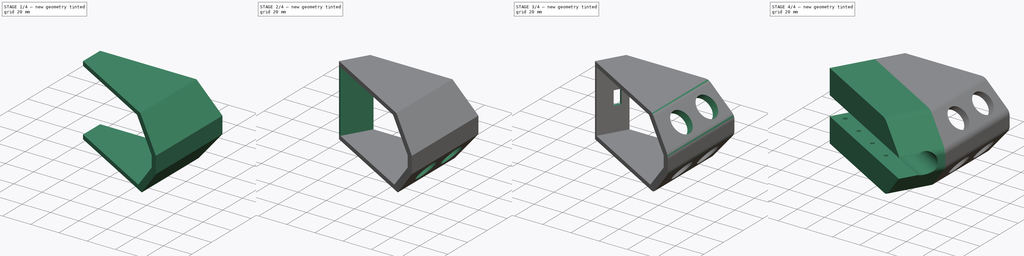
[diagram: build sequence overview — one tinted view per stage of 4, left to right]
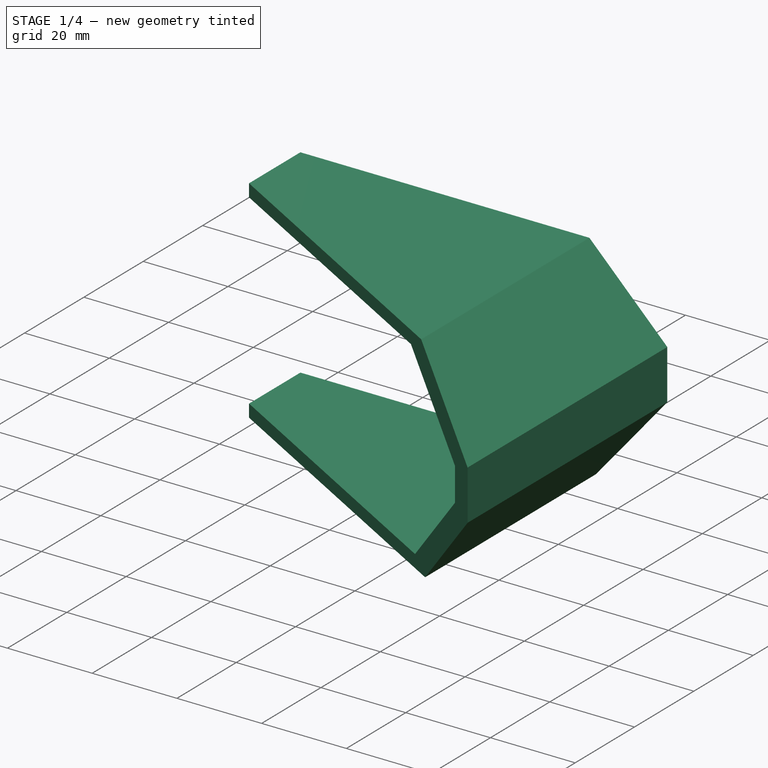
[diagram: stage 1 of 4 — iso view after this stage's code; geometry added in this stage tinted green]
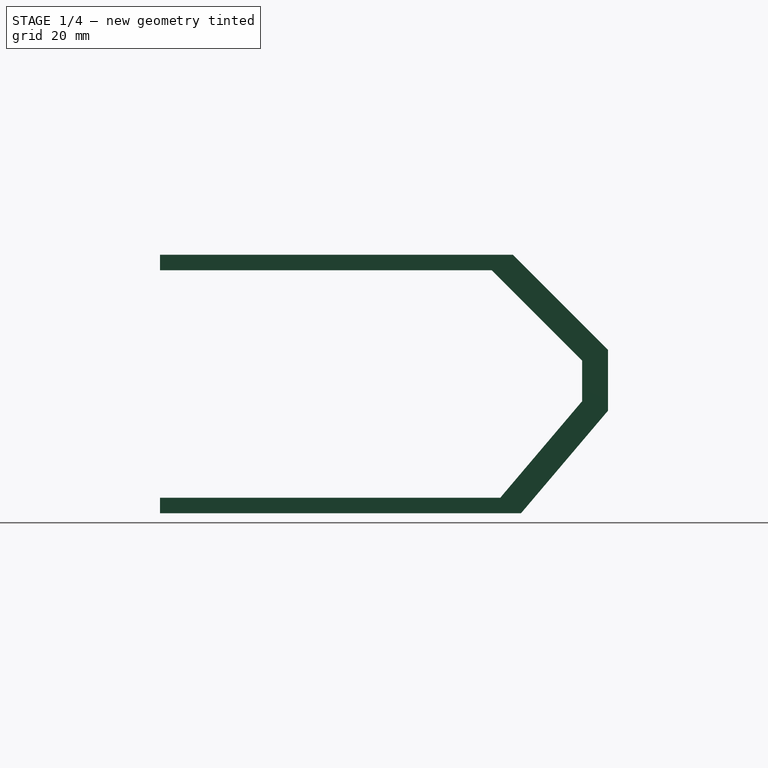
[diagram: stage 1 of 4 — front view after this stage's code; geometry added in this stage tinted green]
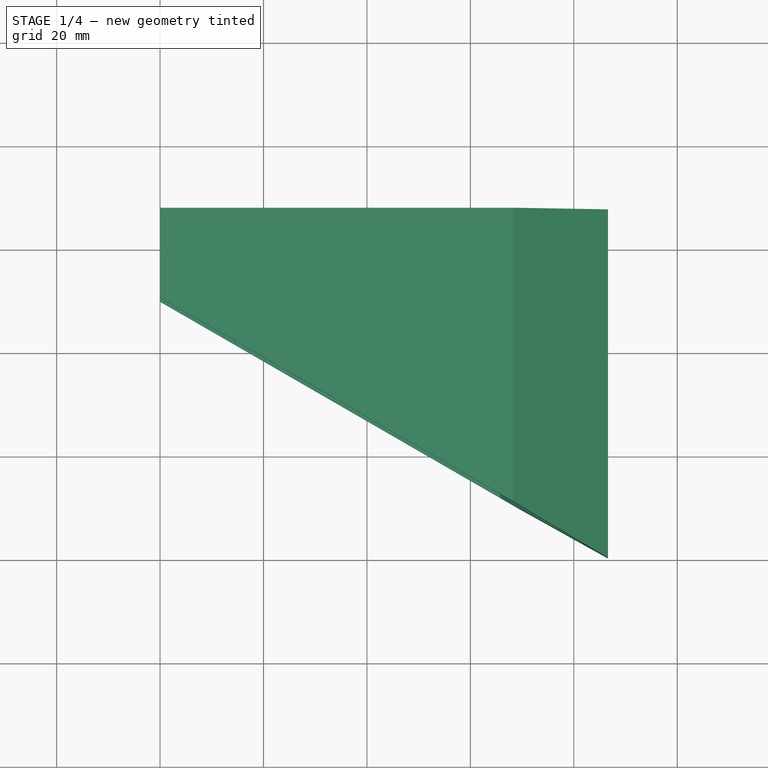
[diagram: stage 1 of 4 — top view after this stage's code; geometry added in this stage tinted green]
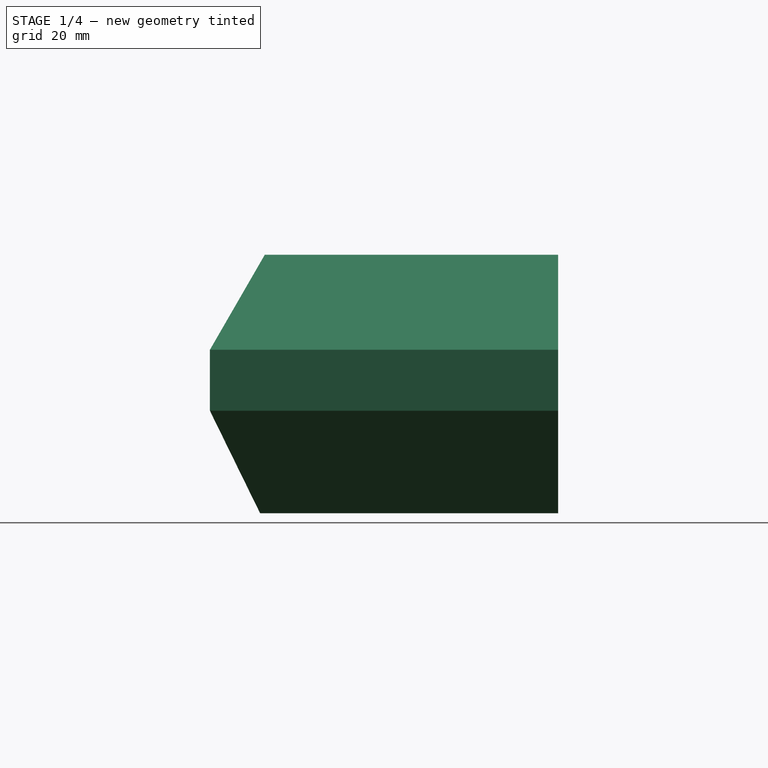
[diagram: stage 1 of 4 — right view after this stage's code; geometry added in this stage tinted green]
FCSTD DOCUMENT  (FreeCAD 0.20R29177 (Git))
Label: sensor
License: All rights reserved
LicenseURL: http://en.wikipedia.org/wiki/All_rights_reserved
objects: Sketcher::SketchObject×12, PartDesign::Pocket×9, PartDesign::Pad×3, Part::Feature×2, App::MeasureDistance×1, PartDesign::Plane×1, PartDesign::Mirrored×1, PartDesign::Fillet×1, PartDesign::Body×1
note: 43 computed .brp shape members not serialized (recipe doc carries the construction recipe); baked Part::Feature solids carry a one-line shape summary decoded from their .brp

FEATURE [Part::Feature] Feature  label="HC-SR005"
  Placement = pos=(-11.8128,24.9,64.8208) rot=(-0.078219,-0.078219,0.993863;1.57695rad)
  shape: bbox 21.69 x 45.5 x 20.73 mm, 5406 faces, 146 solids (baked)
FEATURE [Part::Feature] Feature001  label="NodeMCU-32S"
  Placement = pos=(20.8033,24.3,55.4284) rot=(-0.323616,-0.323616,0.889126;1.68804rad)
  shape: bbox 43.32 x 25.57 x 40.75 mm, 2915 faces, 61 solids (baked)
FEATURE [Sketcher::SketchObject] Sketch003
  FullyConstrained = true
  MapMode = 5
  Support = -> [XY_Plane001]
  sketch-geometry (6):
    g0: LineSegment StartX=0 StartY=0 StartZ=0 EndX=86.6025 EndY=0 EndZ=0
    g1: LineSegment StartX=86.6025 StartY=0 StartZ=0 EndX=86.6025 EndY=67.3205 EndZ=0
    g2: LineSegment StartX=86.6025 StartY=67.3205 StartZ=0 EndX=0 EndY=67.3205 EndZ=0
    g3: LineSegment StartX=0 StartY=67.3205 StartZ=0 EndX=0 EndY=0 EndZ=0
    g4: LineSegment StartX=0 StartY=0 StartZ=0 EndX=86.6025 EndY=50 EndZ=0
    g5: LineSegment StartX=86.6025 StartY=50 StartZ=0 EndX=76.6025 EndY=67.3205 EndZ=0
  constraints (17):
    c: Coincident(g0,g1)
    c: Coincident(g1,g2)
    c: Coincident(g2,g3)
    c: Coincident(g3,g0)
    c: Horizontal(g0)
    c: Horizontal(g2)
    c: Vertical(g1)
    c: Vertical(g3)
    c: Coincident(g0,g-1)
    c: Coincident(g4,g0)
    c: PointOnObject(g4,g1)
    c: Angle(g0,g4) = 0.523599
    c: Coincident(g5,g4)
    c: PointOnObject(g5,g2)
    c: Perpendicular(g5,g4)
    c: Distance(g4) = 100
    c: Distance(g5) = 20
FEATURE [PartDesign::Pad] Pad001
  Direction = (0,0,1)
  Length = 50
  Length2 = 10
  Profile = -> Sketch003
  ReferenceAxis = -> Sketch003 [N_Axis]
  Type = 0
FEATURE [Sketcher::SketchObject] Sketch004
  ExternalGeometry = -> [Pad001]
  FullyConstrained = false
  MapMode = 5
  Placement = pos=(0,67.3205,0) rot=(0,0.707107,0.707107;3.14159rad)
  Support = -> [Pad001]
  sketch-geometry (6):
    g0: LineSegment StartX=-68.2178 StartY=50 StartZ=0 EndX=-86.6025 EndY=31.6152 EndZ=0
    g1: LineSegment StartX=-86.6025 StartY=31.6152 StartZ=0 EndX=-86.6025 EndY=50 EndZ=0
    g2: LineSegment StartX=-86.6025 StartY=50 StartZ=0 EndX=-68.2178 EndY=50 EndZ=0
    g3: LineSegment StartX=-86.6025 StartY=19.8284 StartZ=0 EndX=-69.7848 EndY=0 EndZ=0
    g4: LineSegment StartX=-69.7848 StartY=0 StartZ=0 EndX=-86.6025 EndY=0 EndZ=0
    g5: LineSegment StartX=-86.6025 StartY=0 StartZ=0 EndX=-86.6025 EndY=19.8284 EndZ=0
  constraints (15):
    c: PointOnObject(g0,g-4)
    c: PointOnObject(g0,g-3)
    c: Coincident(g0,g1)
    c: Coincident(g1,g-4)
    c: Coincident(g1,g2)
    c: Coincident(g2,g0)
    c: PointOnObject(g3,g-3)
    c: PointOnObject(g3,g-1)
    c: Coincident(g3,g4)
    c: Coincident(g4,g-3)
    c: Coincident(g4,g5)
    c: Coincident(g5,g3)
    c: Equal(g0,g3)
    c: Angle(g0,g1) = 0.785398
    c: Distance(g0) = 26
FEATURE [PartDesign::Pocket] Pocket002
  BaseFeature = -> Pad001
  Direction = (0,-1,2e-16)
  Length = 5
  Length2 = 5
  Profile = -> Sketch004
  ReferenceAxis = -> Sketch004 [N_Axis]
  Type = 1
FEATURE [Sketcher::SketchObject] Sketch005
  ExternalGeometry = -> [Pocket002]
  FullyConstrained = true
  MapMode = 5
  Placement = pos=(0,67.3205,0) rot=(0,0.707107,0.707107;3.14159rad)
  Support = -> [Pocket002]
  sketch-geometry (8):
    g0: LineSegment StartX=0 StartY=47 StartZ=0 EndX=-64.1467 EndY=47 EndZ=0
    g1: LineSegment StartX=-64.1467 StartY=47 StartZ=0 EndX=-81.6025 EndY=29.5442 EndZ=0
    g2: LineSegment StartX=-81.6025 StartY=29.5442 StartZ=0 EndX=-81.6025 EndY=21.6632 EndZ=0
    g3: LineSegment StartX=-81.6025 StartY=21.6632 StartZ=0 EndX=-65.7731 EndY=3 EndZ=0
    g4: LineSegment StartX=-65.7731 StartY=3 StartZ=0 EndX=0 EndY=3 EndZ=0
    g5: LineSegment StartX=0 StartY=3 StartZ=0 EndX=0 EndY=47 EndZ=0
    g6: LineSegment StartX=-81.6025 StartY=29.5442 StartZ=0 EndX=-85.1381 EndY=33.0797 EndZ=0
    g7: LineSegment StartX=-81.6025 StartY=21.6632 StartZ=0 EndX=-85.4157 EndY=18.4291 EndZ=0
  constraints (24):
    c: Horizontal(g0)
    c: Coincident(g0,g1)
    c: Coincident(g1,g2)
    c: Vertical(g2)
    c: Coincident(g2,g3)
    c: Coincident(g3,g4)
    c: Horizontal(g4)
    c: Coincident(g4,g5)
    c: Coincident(g5,g0)
    c: Vertical(g5)
    c: DistanceY(g0,g-4) = 3
    c: Coincident(g6,g1)
    c: PointOnObject(g6,g-4)
    c: Perpendicular(g6,g-4)
    c: Distance(g6) = 5
    c: Parallel(g1,g-4)
    c: Parallel(g3,g-6)
    c: DistanceY(g-7,g3) = 3
    c: DistanceX(g-5,g1) = 5
    c: Coincident(g7,g2)
    c: PointOnObject(g7,g-6)
    c: Perpendicular(g-6,g7)
    c: Distance(g7) = 5
    c: DistanceX(g0,g-3) = 0
FEATURE [PartDesign::Pocket] Pocket003
  BaseFeature = -> Pocket002
  Direction = (0,-1,2e-16)
  Length = 5
  Length2 = 5
  Profile = -> Sketch005
  ReferenceAxis = -> Sketch005 [N_Axis]
  Type = 1
FEATURE [Sketcher::SketchObject] Sketch006
  ExternalGeometry = -> [Pocket003]
  FullyConstrained = true
  MapMode = 5
  Placement = pos=(0,0,0) rot=(1,0,0;3.14159rad)
  Support = -> [Pocket003]
  sketch-geometry (3):
    g0: LineSegment StartX=86.6025 StartY=0 StartZ=0 EndX=0 EndY=-50 EndZ=0
    g1: LineSegment StartX=0 StartY=-50 StartZ=0 EndX=0 EndY=0 EndZ=0
    g2: LineSegment StartX=0 StartY=0 StartZ=0 EndX=86.6025 EndY=0 EndZ=0
  constraints (7):
    c: Coincident(g-4,g0)
    c: PointOnObject(g0,g-2)
    c: Distance(g0) = 100
    c: Coincident(g1,g-1)
    c: Coincident(g1,g2)
    c: Coincident(g2,g0)
    c: Coincident(g0,g1)
FEATURE [PartDesign::Pocket] Pocket004
  BaseFeature = -> Pocket003
  Direction = (0,0,1)
  Length = 5
  Length2 = 5
  Profile = -> Sketch006
  ReferenceAxis = -> Sketch006 [N_Axis]
  Type = 1
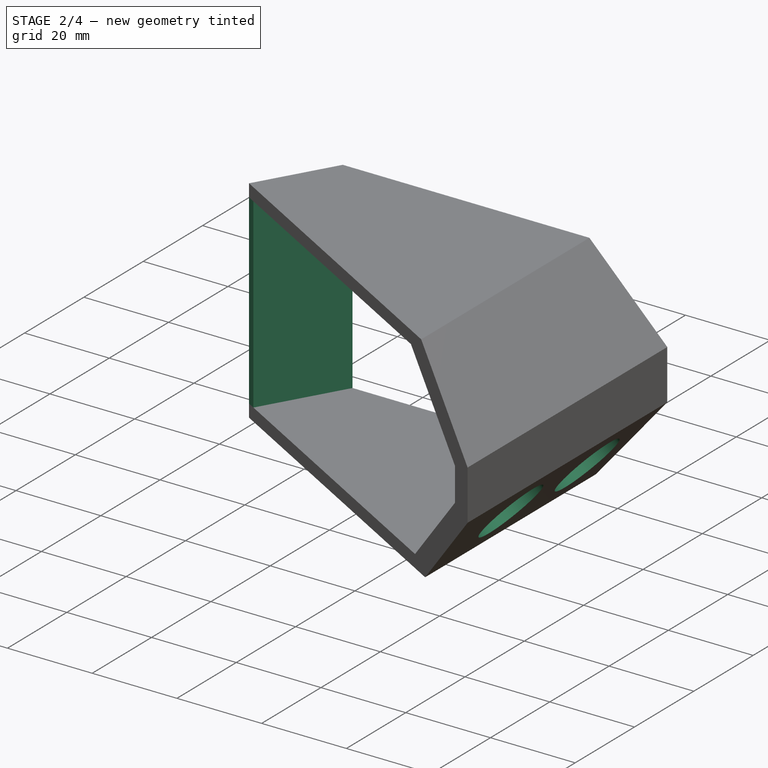
[diagram: stage 2 of 4 — iso view after this stage's code; geometry added in this stage tinted green]
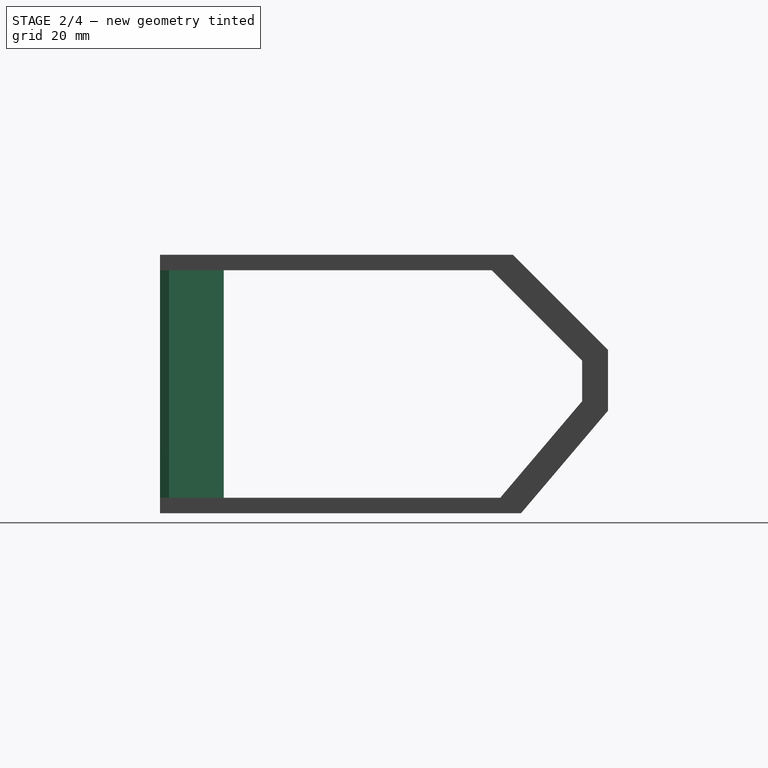
[diagram: stage 2 of 4 — front view after this stage's code; geometry added in this stage tinted green]
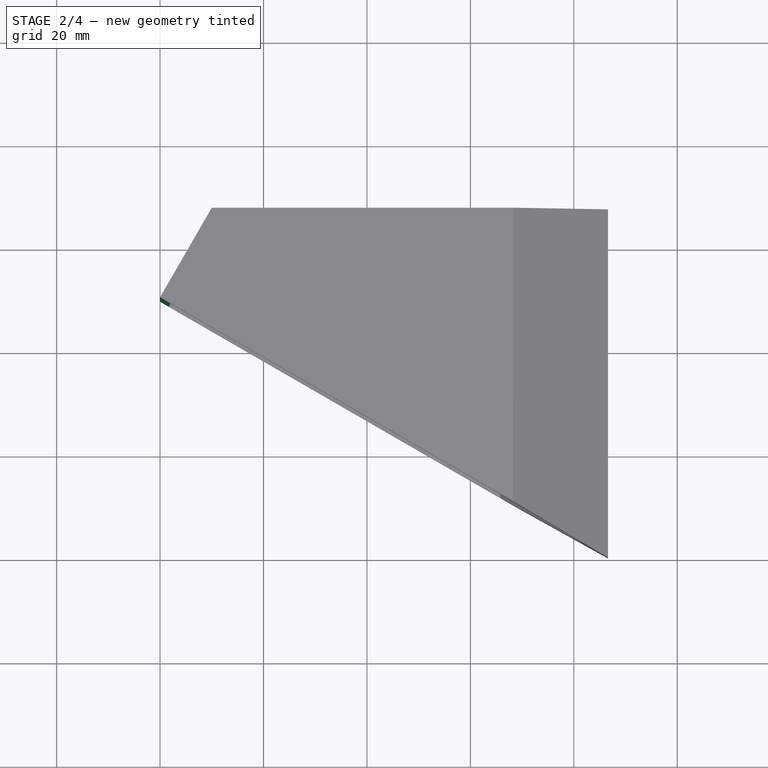
[diagram: stage 2 of 4 — top view after this stage's code; geometry added in this stage tinted green]
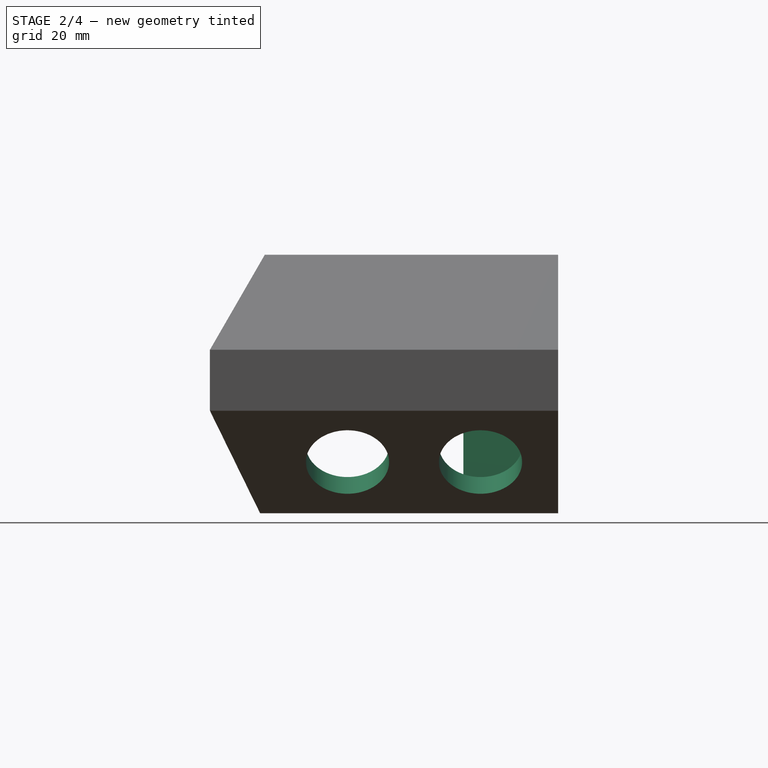
[diagram: stage 2 of 4 — right view after this stage's code; geometry added in this stage tinted green]
FEATURE [Sketcher::SketchObject] Sketch007
  ExternalGeometry = -> [Pocket004]
  FullyConstrained = true
  MapMode = 5
  Placement = pos=(0,1.03e-14,47) rot=(1,0,0;3.14159rad)
  Support = -> [Pocket004]
  sketch-geometry (4):
    g0: LineSegment StartX=0 StartY=-50 StartZ=0 EndX=10 EndY=-67.3205 EndZ=0
    g1: LineSegment StartX=10 StartY=-67.3205 StartZ=0 EndX=12.3094 EndY=-67.3205 EndZ=0
    g2: LineSegment StartX=12.3094 StartY=-67.3205 StartZ=0 EndX=1.73205 EndY=-49 EndZ=0
    g3: LineSegment StartX=1.73205 StartY=-49 StartZ=0 EndX=0 EndY=-50 EndZ=0
  constraints (11):
    c: Coincident(g-3,g0)
    c: PointOnObject(g0,g-4)
    c: Coincident(g0,g1)
    c: PointOnObject(g1,g-4)
    c: Coincident(g1,g2)
    c: PointOnObject(g2,g-3)
    c: Coincident(g2,g3)
    c: Coincident(g3,g0)
    c: Perpendicular(g0,g3)
    c: Parallel(g2,g0)
    c: Distance(g3) = 2
FEATURE [PartDesign::Pad] Pad002
  BaseFeature = -> Pocket004
  Direction = (0,-2e-16,-1)
  Length = 44
  Length2 = 10
  Profile = -> Sketch007
  ReferenceAxis = -> Sketch007 [N_Axis]
  Type = 0
FEATURE [Sketcher::SketchObject] Sketch008
  ExternalGeometry = -> [Pad002]
  FullyConstrained = true
  MapMode = 5
  Placement = pos=(0,0,0) rot=(1,0,0;3.14159rad)
  Support = -> [Pad002]
  sketch-geometry (3):
    g0: LineSegment StartX=10 StartY=-67.3205 StartZ=0 EndX=0 EndY=-50 EndZ=0
    g1: LineSegment StartX=0 StartY=-50 StartZ=0 EndX=0 EndY=-67.3205 EndZ=0
    g2: LineSegment StartX=0 StartY=-67.3205 StartZ=0 EndX=10 EndY=-67.3205 EndZ=0
  constraints (6):
    c: Coincident(g-5,g0)
    c: Coincident(g0,g-5)
    c: Coincident(g0,g1)
    c: Coincident(g1,g-3)
    c: Coincident(g1,g2)
    c: Coincident(g2,g0)
FEATURE [PartDesign::Pocket] Pocket005
  BaseFeature = -> Pad002
  Direction = (0,0,1)
  Length = 5
  Length2 = 5
  Profile = -> Sketch008
  ReferenceAxis = -> Sketch008 [N_Axis]
  Type = 1
FEATURE [Sketcher::SketchObject] Sketch009
  ExternalGeometry = -> [Pocket005]
  FullyConstrained = true
  MapMode = 5
  Placement = pos=(40.5872,-7.5e-15,-34.4246) rot=(0.671996,0.671996,0.311194;2.5382rad)
  Support = -> [Pocket005]
  sketch-geometry (5):
    g0: Circle CenterX=52.3205 CenterY=58.1393 CenterZ=0 NormalX=0 NormalY=0 NormalZ=1 AngleXU=0 Radius=8.05
    g1: Circle CenterX=26.6005 CenterY=58.1393 CenterZ=0 NormalX=0 NormalY=0 NormalZ=1 AngleXU=0 Radius=8.05
    g2: LineSegment StartX=52.3205 StartY=58.1393 StartZ=0 EndX=26.6005 EndY=58.1393 EndZ=0
    g3: LineSegment StartX=67.3205 StartY=71.1393 StartZ=0 EndX=52.3205 EndY=58.1393 EndZ=0
    g4: LineSegment StartX=67.3205 StartY=45.1393 StartZ=0 EndX=52.3205 EndY=58.1393 EndZ=0
  constraints (12):
    c: Equal(g0,g1)
    c: Distance(g0,g1) = 25.72
    c: Diameter(g0) = 16.1
    c: Coincident(g2,g0)
    c: Coincident(g2,g1)
    c: Horizontal(g2)
    c: Coincident(g3,g-3)
    c: Coincident(g3,g0)
    c: Coincident(g4,g-3)
    c: Coincident(g4,g0)
    c: Equal(g3,g4)
    c: DistanceX(g0,g4) = 15
FEATURE [PartDesign::Pocket] Pocket006
  BaseFeature = -> Pocket005
  Direction = (-0.76263,2e-16,0.646835)
  Length = 8
  Length2 = 5
  Profile = -> Sketch009
  ReferenceAxis = -> Sketch009 [N_Axis]
  Type = 0
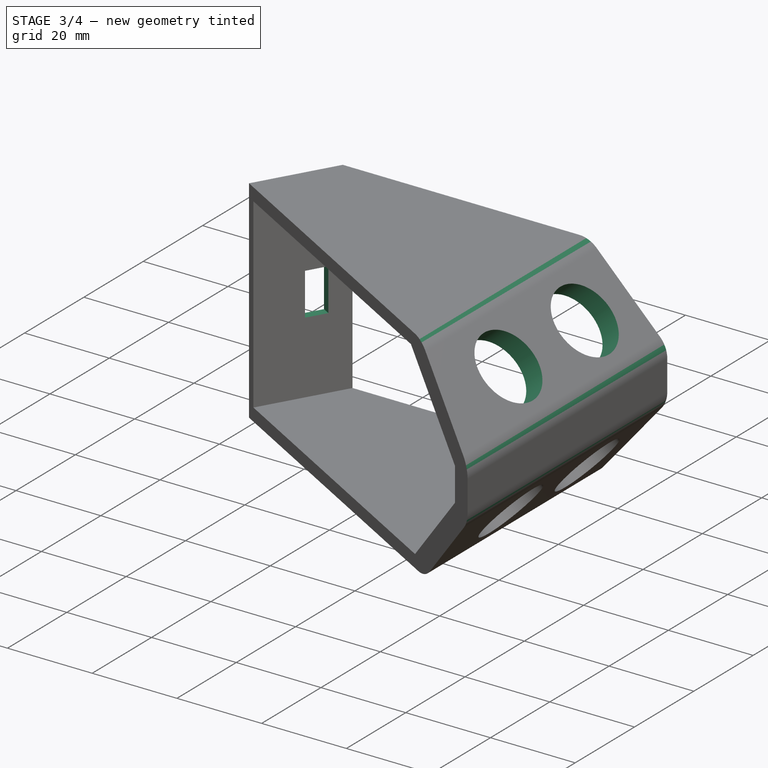
[diagram: stage 3 of 4 — iso view after this stage's code; geometry added in this stage tinted green]
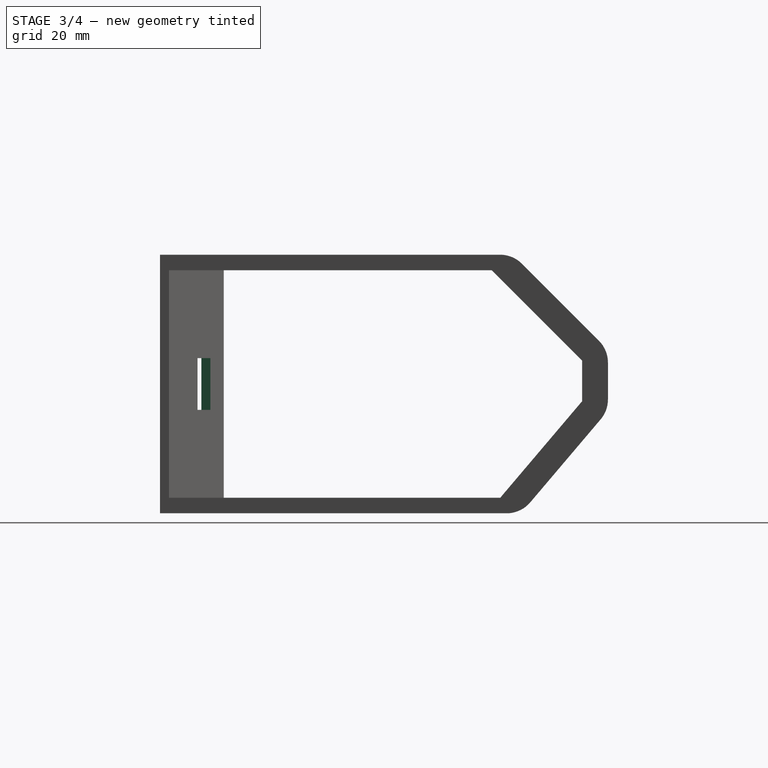
[diagram: stage 3 of 4 — front view after this stage's code; geometry added in this stage tinted green]
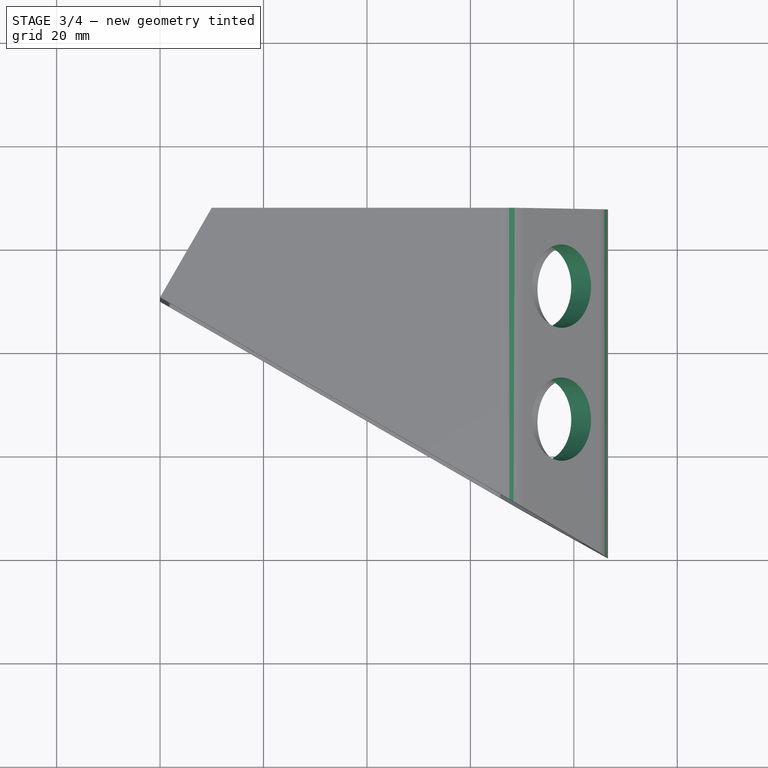
[diagram: stage 3 of 4 — top view after this stage's code; geometry added in this stage tinted green]
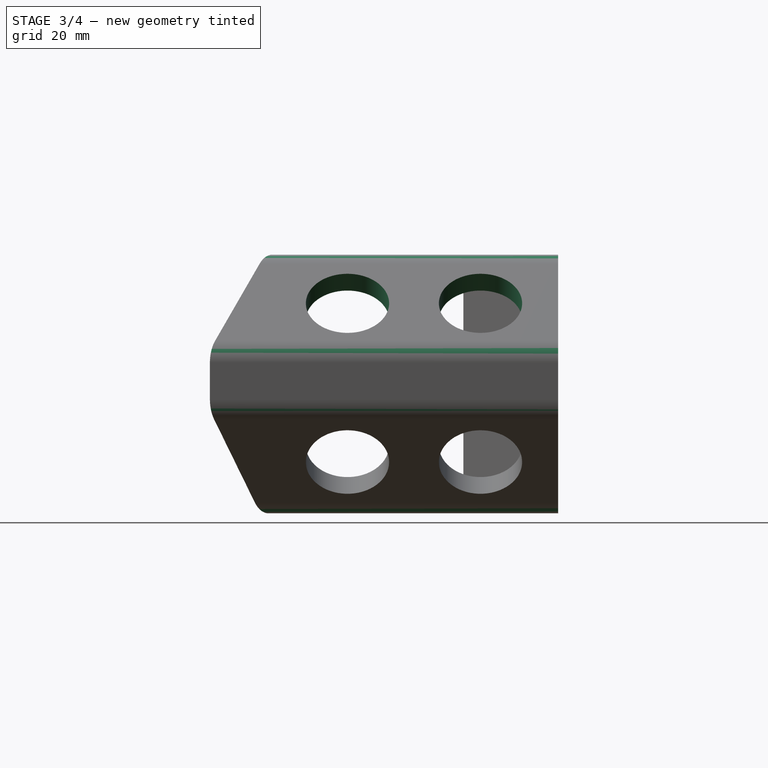
[diagram: stage 3 of 4 — right view after this stage's code; geometry added in this stage tinted green]
FEATURE [App::MeasureDistance] Distance  label="Distance: 50.00 mm"
  Distance = 50.0002
  P1 = (10.1302,67.3205,50)
  P2 = (10.0049,67.3205,0)
FEATURE [PartDesign::Plane] DatumPlane
  AttachmentOffset = pos=(0,0,-25.5) rot=(0,0,1;0rad)
  Length = 131.965
  MapMode = 5
  Placement = pos=(0,0,25.5) rot=(1,0,0;3.14159rad)
  ResizeMode = 0
  Support = -> [Pocket006]
  Width = 113.242
FEATURE [PartDesign::Mirrored] Mirrored
  BaseFeature = -> Pocket006
  MirrorPlane = -> DatumPlane
  Originals = -> [Pocket006]
FEATURE [PartDesign::Fillet] Fillet
  Base = -> Mirrored [Edge1,Edge3,Edge6,Edge22]
  BaseFeature = -> Mirrored
  Radius = 6
  SupportTransform = false
  UseAllEdges = false
FEATURE [Sketcher::SketchObject] Sketch010
  ExternalGeometry = -> [Fillet]
  FullyConstrained = true
  MapMode = 5
  Placement = pos=(-21.6506,12.5,-2.7e-15) rot=(-0.377964,0.654654,0.654654;3.86433rad)
  Support = -> [Fillet]
  sketch-geometry (7):
    g0: LineSegment StartX=-59.3013 StartY=30 StartZ=0 EndX=-54.3013 EndY=30 EndZ=0
    g1: LineSegment StartX=-54.3013 StartY=30 StartZ=0 EndX=-54.3013 EndY=20 EndZ=0
    g2: LineSegment StartX=-54.3013 StartY=20 StartZ=0 EndX=-59.3013 EndY=20 EndZ=0
    g3: LineSegment StartX=-59.3013 StartY=20 StartZ=0 EndX=-59.3013 EndY=30 EndZ=0
    g4: LineSegment StartX=-43.3013 StartY=47 StartZ=0 EndX=-54.3013 EndY=30 EndZ=0
    g5: LineSegment StartX=-54.3013 StartY=20 StartZ=0 EndX=-43.3013 EndY=3 EndZ=0
    g6: LineSegment StartX=-54.3013 StartY=30 StartZ=0 EndX=-43.3013 EndY=30 EndZ=0
  constraints (19):
    c: Coincident(g0,g1)
    c: Coincident(g1,g2)
    c: Coincident(g2,g3)
    c: Coincident(g3,g0)
    c: Horizontal(g0)
    c: Horizontal(g2)
    c: Vertical(g1)
    c: Vertical(g3)
    c: DistanceY(g3,g3) = 10
    c: Coincident(g4,g-3)
    c: Coincident(g4,g0)
    c: Coincident(g5,g1)
    c: Coincident(g5,g-3)
    c: Equal(g4,g5)
    c: DistanceX(g0,g0) = 5
    c: Coincident(g6,g0)
    c: PointOnObject(g6,g-3)
    c: Horizontal(g6)
    c: DistanceX(g0,g6) = 16
FEATURE [PartDesign::Pocket] Pocket007
  BaseFeature = -> Fillet
  Direction = (0.866025,-0.5,0)
  Length = 5
  Length2 = 5
  Profile = -> Sketch010
  ReferenceAxis = -> Sketch010 [N_Axis]
  Type = 0
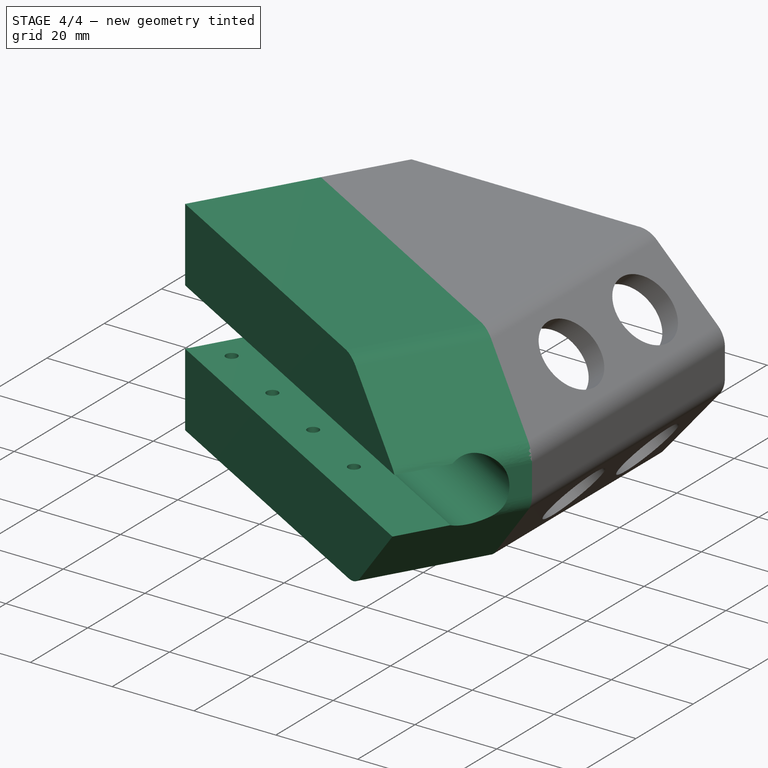
[diagram: stage 4 of 4 — iso view after this stage's code; geometry added in this stage tinted green]
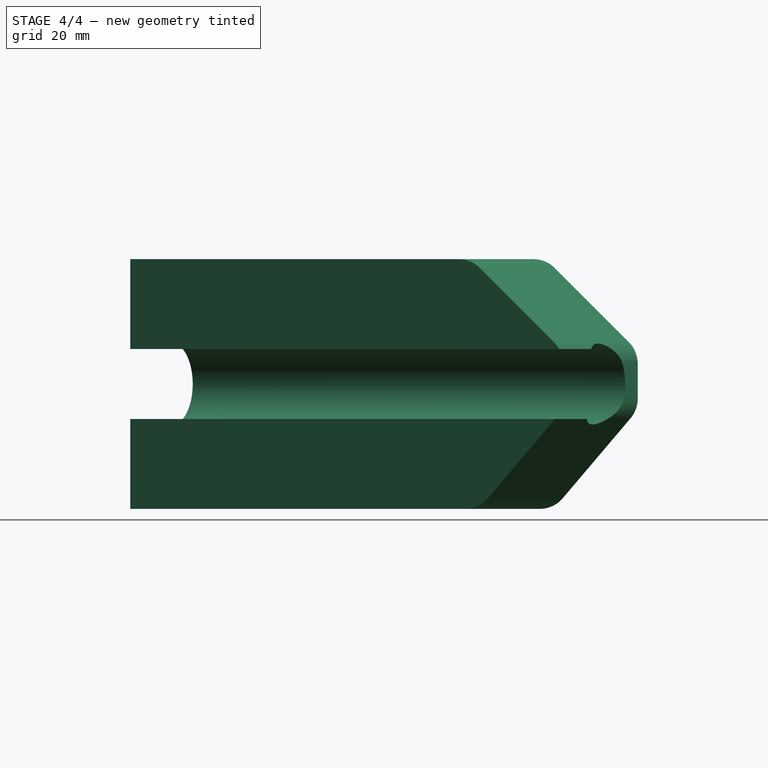
[diagram: stage 4 of 4 — front view after this stage's code; geometry added in this stage tinted green]
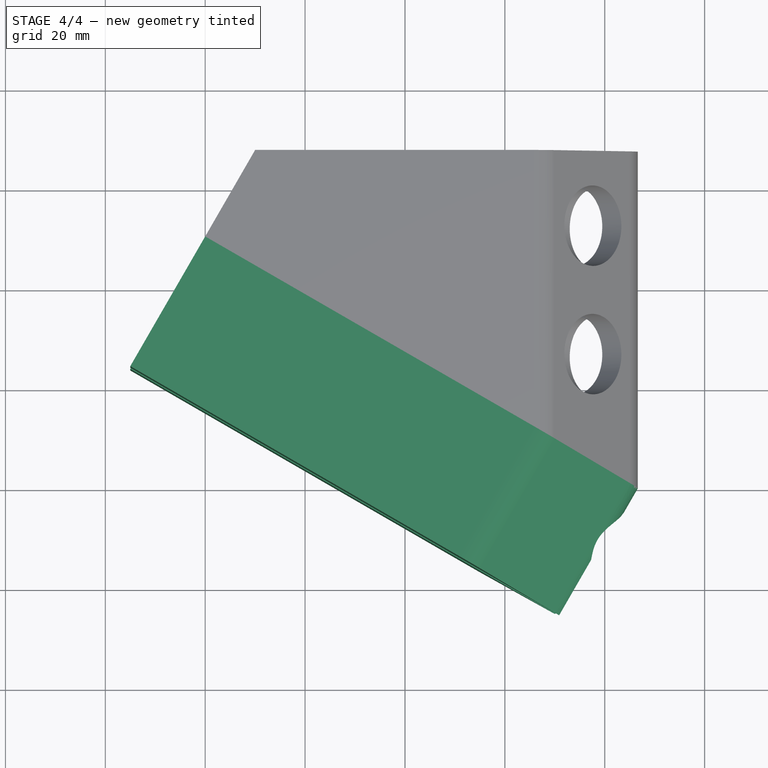
[diagram: stage 4 of 4 — top view after this stage's code; geometry added in this stage tinted green]
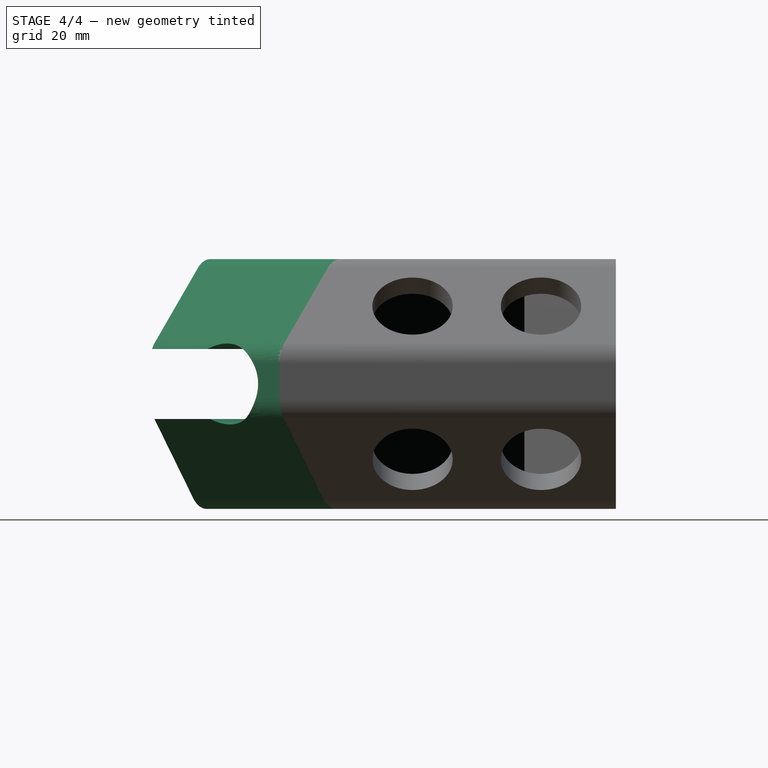
[diagram: stage 4 of 4 — right view after this stage's code; geometry added in this stage tinted green]
FEATURE [Sketcher::SketchObject] Sketch011
  ExternalGeometry = -> [Pocket007]
  FullyConstrained = false
  MapMode = 5
  Placement = pos=(21.6506,37.5,0) rot=(0.935113,-0.250563,-0.250563;1.63783rad)
  Support = -> [Pocket007]
  sketch-geometry (27):
    g0: LineSegment StartX=57.8295 StartY=44 StartZ=0 EndX=43.9731 EndY=44 EndZ=0
    g1: LineSegment StartX=50.9013 StartY=50 StartZ=0 EndX=50.9013 EndY=38 EndZ=0
    g2: GeomPoint X=57.8295 Y=43.9971 Z=0
    g3: GeomPoint X=75 Y=22.0302 Z=0
    g4: ArcOfEllipse CenterX=68.0718 CenterY=29.1299 CenterZ=0 NormalX=0 NormalY=0 NormalZ=1 MajorRadius=6.9282 MinorRadius=6 AngleXU=1.03497e-07 StartAngle=6.28319 EndAngle=7.06858
    g5: LineSegment StartX=75 StartY=29.1299 StartZ=0 EndX=61.1436 EndY=29.1299 EndZ=0
    g6: LineSegment StartX=68.0718 StartY=35.1299 StartZ=0 EndX=68.0718 EndY=23.1299 EndZ=0
    g7: GeomPoint X=71.5359 Y=29.1299 Z=0
    g8: GeomPoint X=64.6077 Y=29.1299 Z=0
    g9: ArcOfEllipse CenterX=68.0718 CenterY=22.0302 CenterZ=0 NormalX=0 NormalY=0 NormalZ=1 MajorRadius=6.9282 MinorRadius=6 AngleXU=1.72164e-07 StartAngle=5.57976 EndAngle=6.28319
    g10: LineSegment StartX=75 StartY=22.0302 StartZ=0 EndX=61.1436 EndY=22.0302 EndZ=0
    g11: LineSegment StartX=68.0718 StartY=28.0302 StartZ=0 EndX=68.0718 EndY=16.0302 EndZ=0
    g12: GeomPoint X=71.5359 Y=22.0302 Z=0
    g13: GeomPoint X=64.6077 Y=22.0302 Z=0
    g14: ArcOfEllipse CenterX=52.3722 CenterY=6 CenterZ=0 NormalX=0 NormalY=0 NormalZ=1 MajorRadius=6.9282 MinorRadius=6 AngleXU=-3.14159 StartAngle=1.5708 EndAngle=2.43817
    g15: LineSegment StartX=45.444 StartY=6 StartZ=0 EndX=59.3004 EndY=6 EndZ=0
    g16: LineSegment StartX=52.3722 StartY=6.61e-14 StartZ=0 EndX=52.3722 EndY=12 EndZ=0
    g17: GeomPoint X=48.9081 Y=6 Z=0
    g18: GeomPoint X=55.8363 Y=6 Z=0
    g19: GeomPoint X=59.3004 Y=6 Z=0
    g20: LineSegment StartX=-25 StartY=50 StartZ=0 EndX=50.9013 EndY=50 EndZ=0
    g21: LineSegment StartX=55.8003 StartY=48.2426 StartZ=0 EndX=72.9708 EndY=33.3726 EndZ=0
    g22: LineSegment StartX=75 StartY=29.1299 StartZ=0 EndX=75 EndY=22.0302 EndZ=0
    g23: LineSegment StartX=73.3555 StartY=18.1492 StartZ=0 EndX=57.6559 EndY=2.11899 EndZ=0
    g24: LineSegment StartX=52.3722 StartY=1.8e-15 StartZ=0 EndX=-25 EndY=-9e-16 EndZ=0
    g25: LineSegment StartX=-25 StartY=-9e-16 StartZ=0 EndX=-25 EndY=50 EndZ=0
    g26: ArcOfEllipse CenterX=50.9013 CenterY=44 CenterZ=0 NormalX=0 NormalY=0 NormalZ=1 MajorRadius=6.9282 MinorRadius=6 AngleXU=0 StartAngle=0.785398 EndAngle=1.5708
  constraints (26):
    c: PointOnObject(g2,g-4)
    c: PointOnObject(g3,g-7)
    c: InternalAlignment(g5-g8 -> g4) x4
    c: Coincident(g4,g-11)
    c: Coincident(g4,g-5)
    c: InternalAlignment(g10-g13 -> g9) x4
    c: Coincident(g9,g-7)
    c: Coincident(g9,g-8)
    c: InternalAlignment(g15-g18 -> g14) x4
    c: Coincident(g14,g-9)
    c: PointOnObject(g19,g-9)
    c: PointOnObject(g19,g14)
    c: Tangent(g-9,g14,g19) = -1.5708
    c: PointOnObject(g14,g-10)
    c: Coincident(g14,g-8)
    c: Coincident(g-5,g21)
    c: Coincident(g21,g4)
    c: Coincident(g23,g9)
    c: Coincident(g23,g14)
    c: Coincident(g24,g14)
    c: Coincident(g24,g-10)
    c: Coincident(g25,g24)
    c: Coincident(g25,g20)
    c: Vertical(g25)
    c: Coincident(g26,g20)
    c: PointOnObject(g26,g21)
FEATURE [PartDesign::Pad] Pad003
  BaseFeature = -> Pocket007
  Direction = (-0.5,-0.866025,-2e-16)
  Length = 30
  Length2 = 10
  Profile = -> Sketch011
  ReferenceAxis = -> Sketch011 [N_Axis]
  Type = 0
FEATURE [Sketcher::SketchObject] Sketch012
  ExternalGeometry = -> [Pad003]
  FullyConstrained = false
  MapMode = 5
  Placement = pos=(-21.6506,12.5,1.5e-15) rot=(-0.377964,0.654654,0.654654;3.86433rad)
  Support = -> [Pad003]
  sketch-geometry (8):
    g0: ArcOfCircle CenterX=-30.2013 CenterY=25 CenterZ=0 NormalX=0 NormalY=0 NormalZ=1 AngleXU=0 Radius=8.1 StartAngle=1.04355 EndAngle=5.23963
    g1: LineSegment StartX=-30.2013 StartY=25 StartZ=0 EndX=-13.3013 EndY=50 EndZ=0
    g2: LineSegment StartX=-30.2013 StartY=25 StartZ=0 EndX=-13.3013 EndY=-7.1e-15 EndZ=0
    g3: LineSegment StartX=-26.1257 StartY=32 StartZ=0 EndX=-13.3013 EndY=32 EndZ=0
    g4: LineSegment StartX=-26.1257 StartY=18 StartZ=0 EndX=-13.3013 EndY=18 EndZ=0
    g5: LineSegment StartX=-26.1257 StartY=32 StartZ=0 EndX=-26.1257 EndY=18 EndZ=0
    g6: LineSegment StartX=-38.3013 StartY=45 StartZ=0 EndX=-38.3013 EndY=12.4531 EndZ=0
    g7: LineSegment StartX=-13.3013 StartY=32 StartZ=0 EndX=-13.3013 EndY=18 EndZ=0
  constraints (21):
    c: Coincident(g1,g0)
    c: Coincident(g2,g0)
    c: Coincident(g2,g-3)
    c: Equal(g1,g2)
    c: Diameter(g0) = 16.2
    c: Horizontal(g3)
    c: Horizontal(g4)
    c: Coincident(g5,g3)
    c: Coincident(g5,g4)
    c: Vertical(g5)
    c: Vertical(g6)
    c: Tangent(g6,g0)
    c: DistanceY(g5,g5) = 14
    c: Coincident(g0,g4)
    c: Coincident(g0,g3)
    c: Coincident(g7,g4)
    c: Coincident(g1,g-4)
    c: PointOnObject(g3,g-4)
    c: Coincident(g3,g7)
    c: Vertical(g7)
    c: DistanceX(g-5,g6) = 5
FEATURE [PartDesign::Pocket] Pocket008
  BaseFeature = -> Pad003
  Direction = (0.866025,-0.5,0)
  Length = 5
  Length2 = 5
  Profile = -> Sketch012
  ReferenceAxis = -> Sketch012 [N_Axis]
  Type = 1
FEATURE [Sketcher::SketchObject] Sketch013
  ExternalGeometry = -> [Pocket008]
  FullyConstrained = false
  MapMode = 5
  Placement = pos=(0,0,-7.4e-15) rot=(1,0,0;3.14159rad)
  Support = -> [Pocket008]
  sketch-geometry (8):
    g0: Circle CenterX=-5.43782 CenterY=-26.5814 CenterZ=0 NormalX=0 NormalY=0 NormalZ=1 AngleXU=0 Radius=3
    g1: Circle CenterX=11.2919 CenterY=-16.9225 CenterZ=0 NormalX=0 NormalY=0 NormalZ=1 AngleXU=0 Radius=3
    g2: Circle CenterX=28.0217 CenterY=-7.26356 CenterZ=0 NormalX=0 NormalY=0 NormalZ=1 AngleXU=0 Radius=3
    g3: Circle CenterX=44.7514 CenterY=2.39536 CenterZ=0 NormalX=0 NormalY=0 NormalZ=1 AngleXU=0 Radius=3
    g4: LineSegment StartX=44.7514 StartY=2.39536 StartZ=0 EndX=28.0217 EndY=-7.26356 EndZ=0
    g5: LineSegment StartX=28.0217 StartY=-7.26356 StartZ=0 EndX=11.2919 EndY=-16.9225 EndZ=0
    g6: LineSegment StartX=11.2919 StartY=-16.9225 StartZ=0 EndX=-5.43782 EndY=-26.5814 EndZ=0
    g7: LineSegment StartX=-5.43782 StartY=-26.5814 StartZ=0 EndX=-8.93782 EndY=-20.5192 EndZ=0
  constraints (20):
    c: Equal(g3,g2)
    c: Equal(g2,g1)
    c: Equal(g1,g0)
    c: Diameter(g0) = 6
    c: Coincident(g4,g3)
    c: Coincident(g4,g2)
    c: Coincident(g4,g5)
    c: Coincident(g5,g1)
    c: Coincident(g5,g6)
    c: Coincident(g6,g0)
    c: Parallel(g4,g5)
    c: Parallel(g5,g6)
    c: Equal(g4,g5)
    c: Equal(g5,g6)
    c: Parallel(g4,g-3)
    c: Coincident(g7,g0)
    c: PointOnObject(g7,g-3)
    c: Perpendicular(g-3,g7)
    c: Distance(g7) = 7
    c: Distance(g-4,g7) = 7
FEATURE [PartDesign::Pocket] Pocket009
  BaseFeature = -> Pocket008
  Direction = (-1e-16,-2e-16,1)
  Length = 11
  Length2 = 5
  Profile = -> Sketch013
  ReferenceAxis = -> Sketch013 [N_Axis]
  Type = 0
FEATURE [Sketcher::SketchObject] Sketch
  FullyConstrained = false
  MapMode = 5
  Placement = pos=(-8e-16,-1.6e-15,11) rot=(1,0,0;3.14159rad)
  sketch-geometry (4):
    g0: Circle CenterX=-5.43782 CenterY=-26.5814 CenterZ=0 NormalX=0 NormalY=0 NormalZ=1 AngleXU=0 Radius=1.4
    g1: Circle CenterX=11.2919 CenterY=-16.9225 CenterZ=0 NormalX=0 NormalY=0 NormalZ=1 AngleXU=0 Radius=1.4
    g2: Circle CenterX=28.0217 CenterY=-7.26356 CenterZ=0 NormalX=0 NormalY=0 NormalZ=1 AngleXU=0 Radius=1.4
    g3: Circle CenterX=44.7514 CenterY=2.39536 CenterZ=0 NormalX=0 NormalY=0 NormalZ=1 AngleXU=0 Radius=1.4
  constraints (4):
    c: Equal(g3,g2)
    c: Equal(g2,g1)
    c: Equal(g1,g0)
    c: Diameter(g0) = 2.8
FEATURE [PartDesign::Pocket] Pocket
  BaseFeature = -> Pocket009
  Direction = (-1e-16,-1e-16,1)
  Length = 30
  Length2 = 5
  Profile = -> Sketch
  ReferenceAxis = -> Sketch [N_Axis]
  Type = 0
FEATURE [PartDesign::Body] Body001
  Group = -> [Sketch003,Pad001,Sketch004,Pocket002,Sketch005,Pocket003,Sketch006,Pocket004,Sketch007,Pad002,Sketch008,Pocket005,Sketch009,Pocket006,DatumPlane,Mirrored,Fillet,Sketch010,Pocket007,Sketch011,Pad003,Sketch012,Pocket008,Sketch013,Pocket009,Sketch,Pocket]
  Origin = -> Origin001
  Tip = -> Pocket
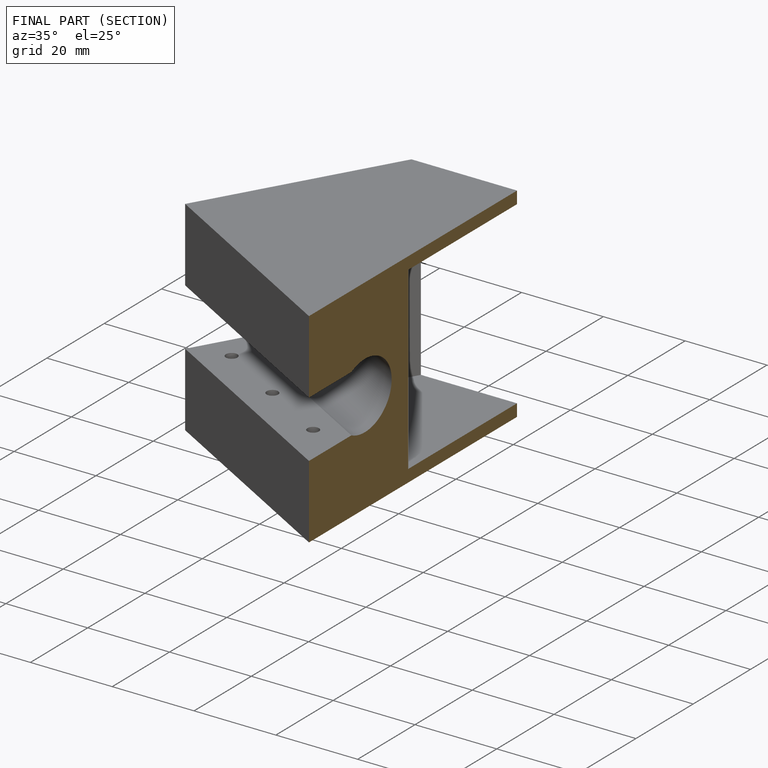
[diagram: finished part — half-section view (interior)]
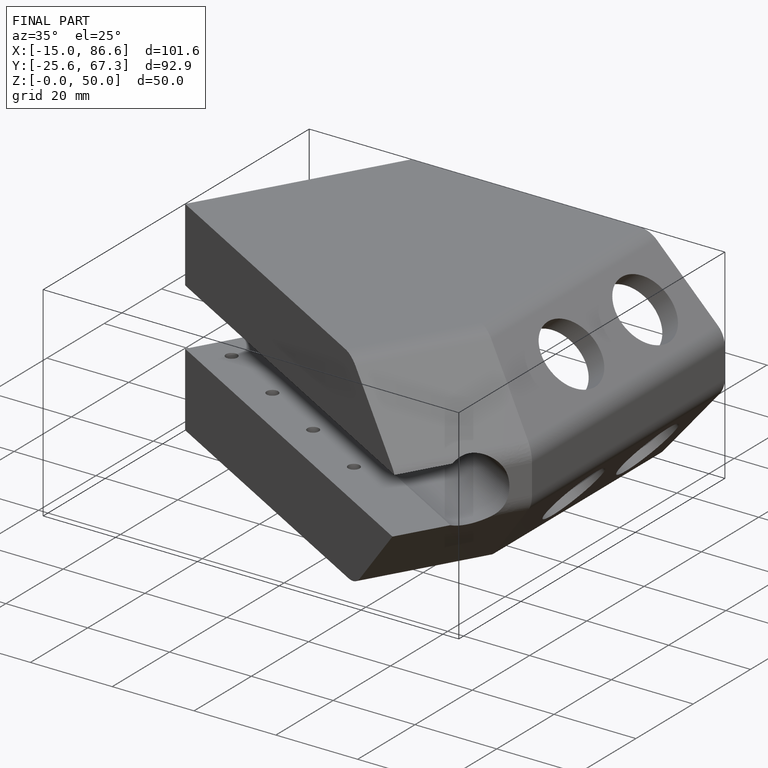
[diagram: finished part — iso view with bounding-box wireframe]
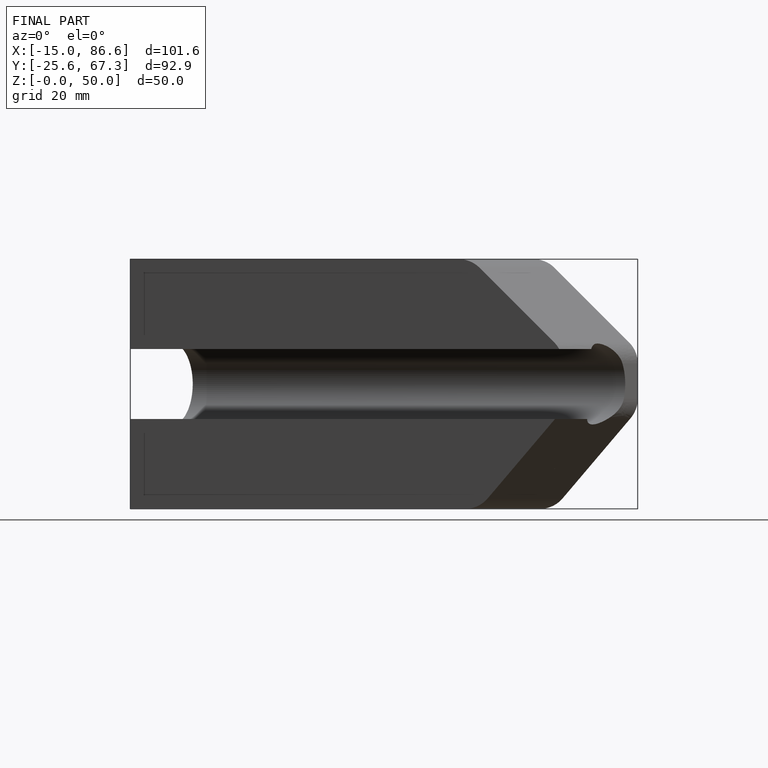
[diagram: finished part — front view with bounding-box wireframe]
